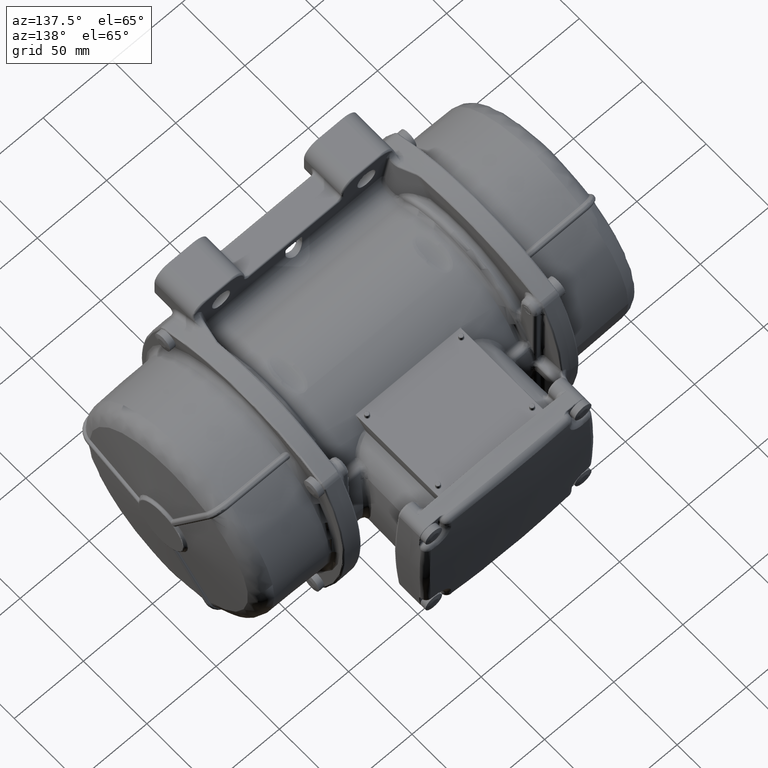
[diagram: clean part render]
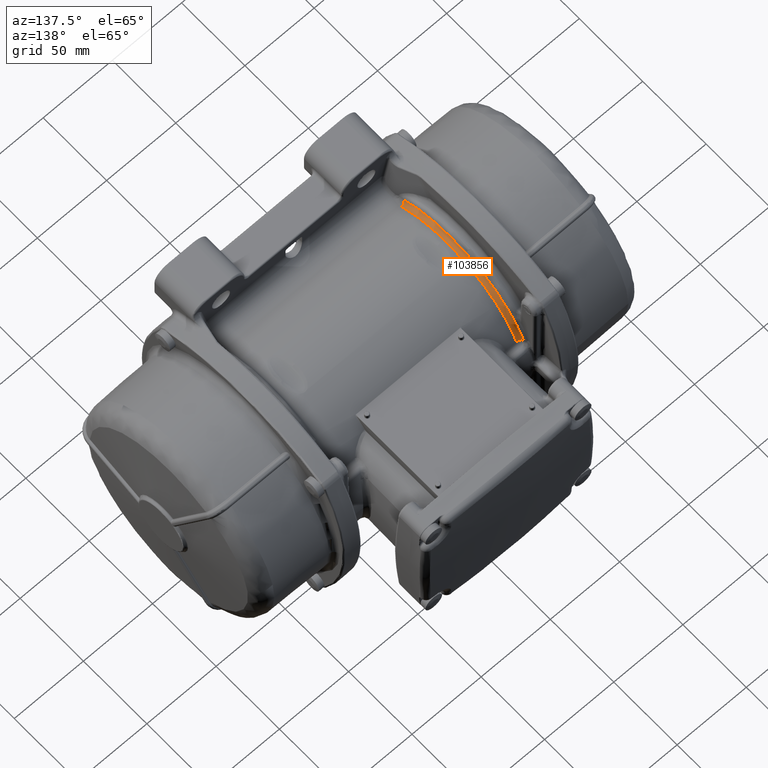
[diagram: same view with one face highlighted and labeled with its STEP entity id]
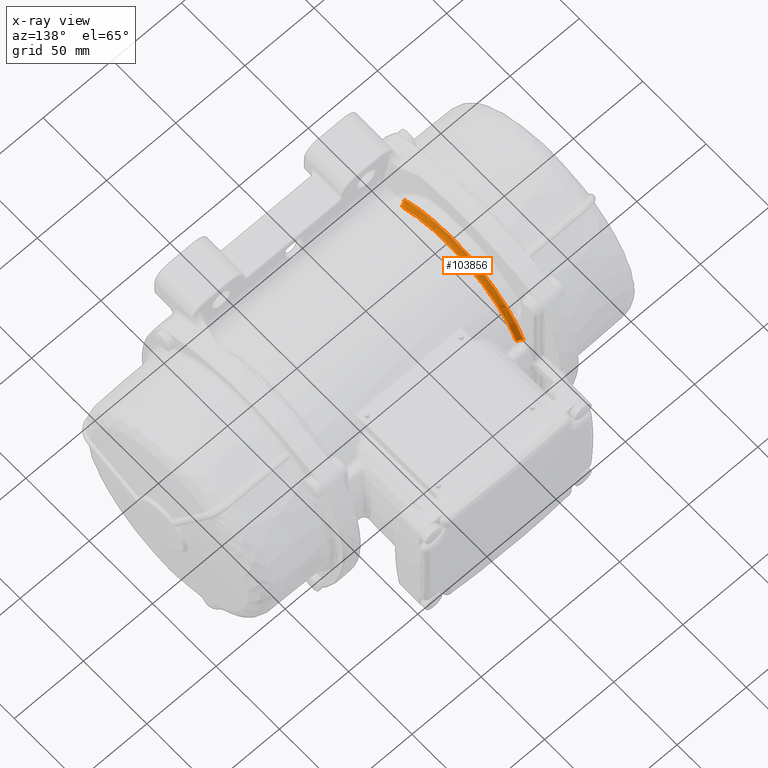
[diagram: x-ray of the same camera — body ghosted, the highlighted face saturated]
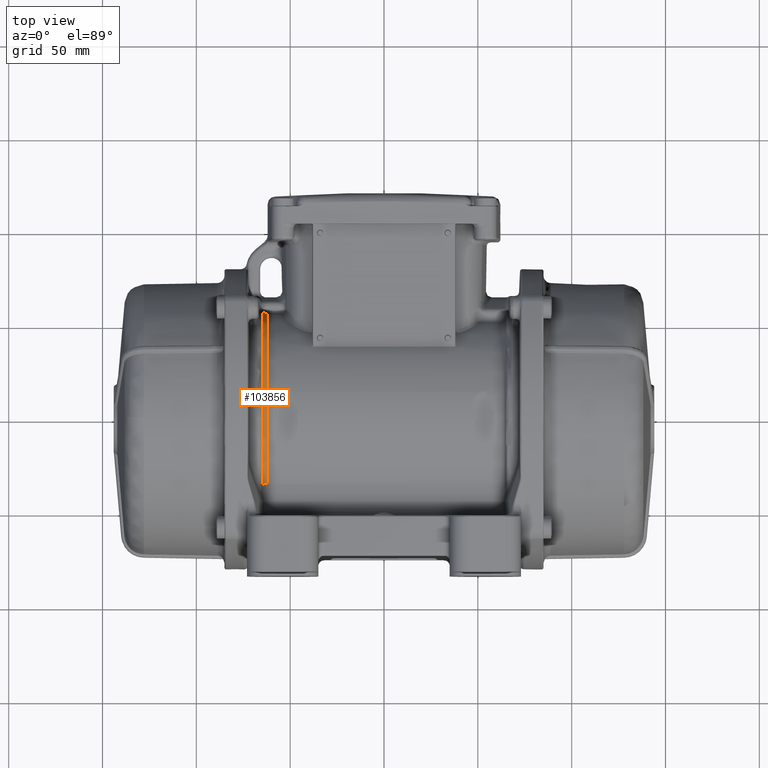
[diagram: same view with one face highlighted and labeled with its STEP entity id]
A machine part, auxiliary view. The second image highlights one B-rep face of the part: STEP entity #103856.
The next image is the same camera in x-ray: the body ghosted, the highlighted face saturated — about 0% of this face is hidden behind the body in this view.
A second angle (top view) of the same face is appended — the face is thin or edge-on in the first view.
In plain terms, the highlighted toroidal blend (fillet) surface has major radius 63 mm and minor (blend) radius 3 mm.
Its self-contained STEP definition (entity closure, byte-faithful):
#414 = VERTEX_POINT ( 'NONE', #94035 ) ;
#3079 = EDGE_LOOP ( 'NONE', ( #41535, #107586, #33343, #15064, #50240 ) ) ;
#11466 = DIRECTION ( 'NONE',  ( 0.000000000000000000, -0.5813385732339910739, 0.8136617622023708529 ) ) ;
#15064 = ORIENTED_EDGE ( 'NONE', *, *, #102141, .F. ) ;
#20259 = CIRCLE ( 'NONE', #108271, 3.000000000000000444 ) ;
#20697 = CARTESIAN_POINT ( 'NONE',  ( -61.95579544366479752, -1.223062037558429967E-14, 0.000000000000000000 ) ) ;
#22178 = CIRCLE ( 'NONE', #110192, 62.50000000000000000 ) ;
#22946 = AXIS2_PLACEMENT_3D ( 'NONE', #115092, #37401, #85494 ) ;
#26912 = CARTESIAN_POINT ( 'NONE',  ( -61.95579544366479752, 6.938893903907229955E-15, -3.469446951953614978E-15 ) ) ;
#33343 = ORIENTED_EDGE ( 'NONE', *, *, #74804, .F. ) ;
#34674 = CARTESIAN_POINT ( 'NONE',  ( -61.95579544366479752, 58.54383078587049738, 23.27272817946695227 ) ) ;
#37401 = DIRECTION ( 'NONE',  ( -1.000000000000000000, 0.000000000000000000, 0.000000000000000000 ) ) ;
#38377 = DIRECTION ( 'NONE',  ( 0.000000000000000000, 0.000000000000000000, 1.000000000000000000 ) ) ;
#41535 = ORIENTED_EDGE ( 'NONE', *, *, #87434, .F. ) ;
#45143 = VERTEX_POINT ( 'NONE', #73356 ) ;
#45996 = CIRCLE ( 'NONE', #91093, 60.00000000000000000 ) ;
#47357 = DIRECTION ( 'NONE',  ( -1.000000000000000000, 0.000000000000000000, 0.000000000000000000 ) ) ;
#49121 = CARTESIAN_POINT ( 'NONE',  ( -61.95579544366479752, -36.62433011374139369, 51.26069101874939804 ) ) ;
#50240 = ORIENTED_EDGE ( 'NONE', *, *, #61579, .F. ) ;
#61579 = EDGE_CURVE ( 'NONE', #89818, #45143, #45996, .T. ) ;
#66038 = DIRECTION ( 'NONE',  ( 1.672810958976564683E-15, -0.3694083838010649434, 0.9292671553312777943 ) ) ;
#69144 = CARTESIAN_POINT ( 'NONE',  ( -64.91383533521459981, 58.07919720820490284, 23.08802398756639818 ) ) ;
#73356 = CARTESIAN_POINT ( 'NONE',  ( -61.95579544366479752, -34.88031439403945200, 48.81970573214230313 ) ) ;
#74804 = EDGE_CURVE ( 'NONE', #414, #114602, #22178, .T. ) ;
#76871 = FACE_OUTER_BOUND ( 'NONE', #3079, .T. ) ;
#78151 = CIRCLE ( 'NONE', #22946, 62.50000000000000000 ) ;
#81231 = CIRCLE ( 'NONE', #83224, 3.000000000000000000 ) ;
#83224 = AXIS2_PLACEMENT_3D ( 'NONE', #49121, #99217, #11466 ) ;
#84470 = EDGE_CURVE ( 'NONE', #114602, #123809, #78151, .T. ) ;
#85494 = DIRECTION ( 'NONE',  ( 0.000000000000000000, 0.000000000000000000, 1.000000000000000000 ) ) ;
#87434 = EDGE_CURVE ( 'NONE', #123809, #89818, #20259, .T. ) ;
#89818 = VERTEX_POINT ( 'NONE', #109717 ) ;
#91093 = AXIS2_PLACEMENT_3D ( 'NONE', #20697, #96477, #106112 ) ;
#94035 = CARTESIAN_POINT ( 'NONE',  ( -64.91383533521459981, -36.33366082712439749, 50.85386013764819779 ) ) ;
#96195 = CARTESIAN_POINT ( 'NONE',  ( -64.91383533521459981, 6.938893903907229955E-15, -3.469446951953614978E-15 ) ) ;
#96477 = DIRECTION ( 'NONE',  ( 1.000000000000000000, 3.469446951953615175E-16, 0.000000000000000000 ) ) ;
#97927 = AXIS2_PLACEMENT_3D ( 'NONE', #26912, #107014, #125701 ) ;
#99217 = DIRECTION ( 'NONE',  ( 0.000000000000000000, 0.8136617622023709639, 0.5813385732339910739 ) ) ;
#99961 = TOROIDAL_SURFACE ( 'NONE', #97927, 63.00000000000000000, 3.000000000000000000 ) ;
#102141 = EDGE_CURVE ( 'NONE', #45143, #414, #81231, .T. ) ;
#103856 = ADVANCED_FACE ( 'NONE', ( #76871 ), #99961, .F. ) ;
#106112 = DIRECTION ( 'NONE',  ( -3.469446951953614189E-16, 1.000000000000000000, 0.000000000000000000 ) ) ;
#107014 = DIRECTION ( 'NONE',  ( 1.000000000000000000, 0.000000000000000000, 0.000000000000000000 ) ) ;
#107586 = ORIENTED_EDGE ( 'NONE', *, *, #84470, .F. ) ;
#108271 = AXIS2_PLACEMENT_3D ( 'NONE', #34674, #66038, #112949 ) ;
#109717 = CARTESIAN_POINT ( 'NONE',  ( -61.95579544366479752, 55.75602931987670274, 22.16450302806374850 ) ) ;
#110192 = AXIS2_PLACEMENT_3D ( 'NONE', #96195, #47357, #38377 ) ;
#112949 = DIRECTION ( 'NONE',  ( 0.000000000000000000, -0.9292671553312775723, -0.3694083838010654430 ) ) ;
#114602 = VERTEX_POINT ( 'NONE', #121823 ) ;
#115092 = CARTESIAN_POINT ( 'NONE',  ( -64.91383533521459981, 6.938893903907229955E-15, -3.469446951953614978E-15 ) ) ;
#121823 = CARTESIAN_POINT ( 'NONE',  ( -64.91383533521459981, -1.362051103753993957E-14, 62.50000000000000000 ) ) ;
#123809 = VERTEX_POINT ( 'NONE', #69144 ) ;
#125701 = DIRECTION ( 'NONE',  ( 0.000000000000000000, 0.000000000000000000, -1.000000000000000000 ) ) ;